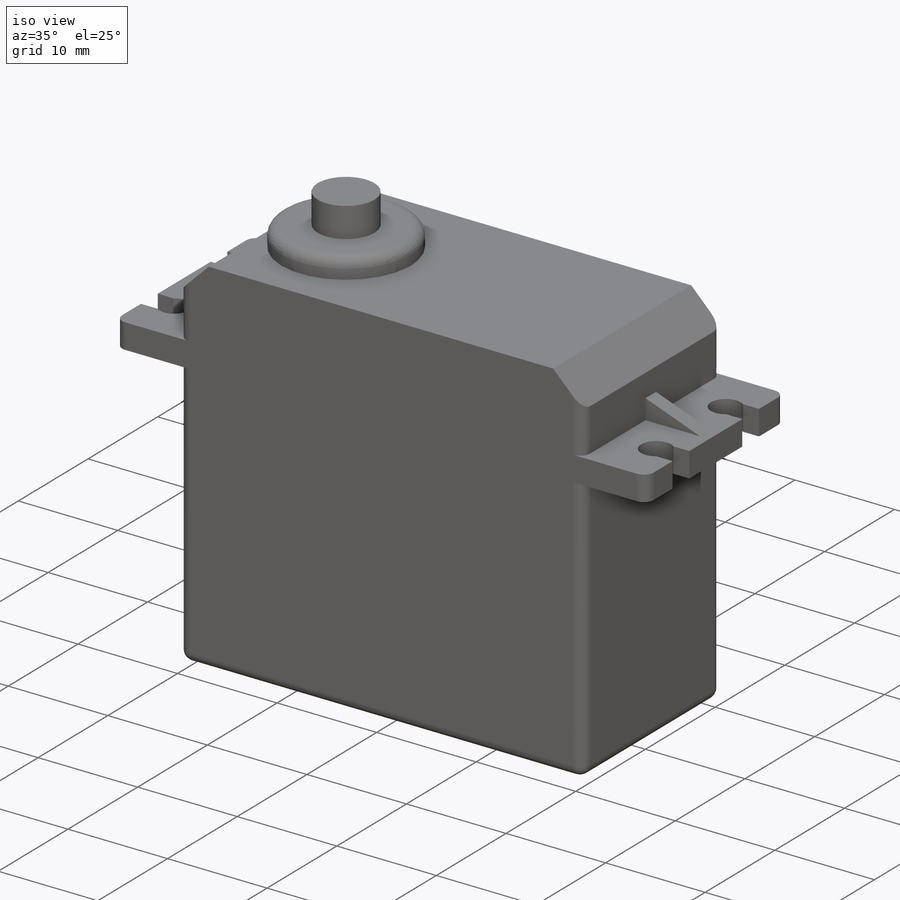
[diagram: iso view]
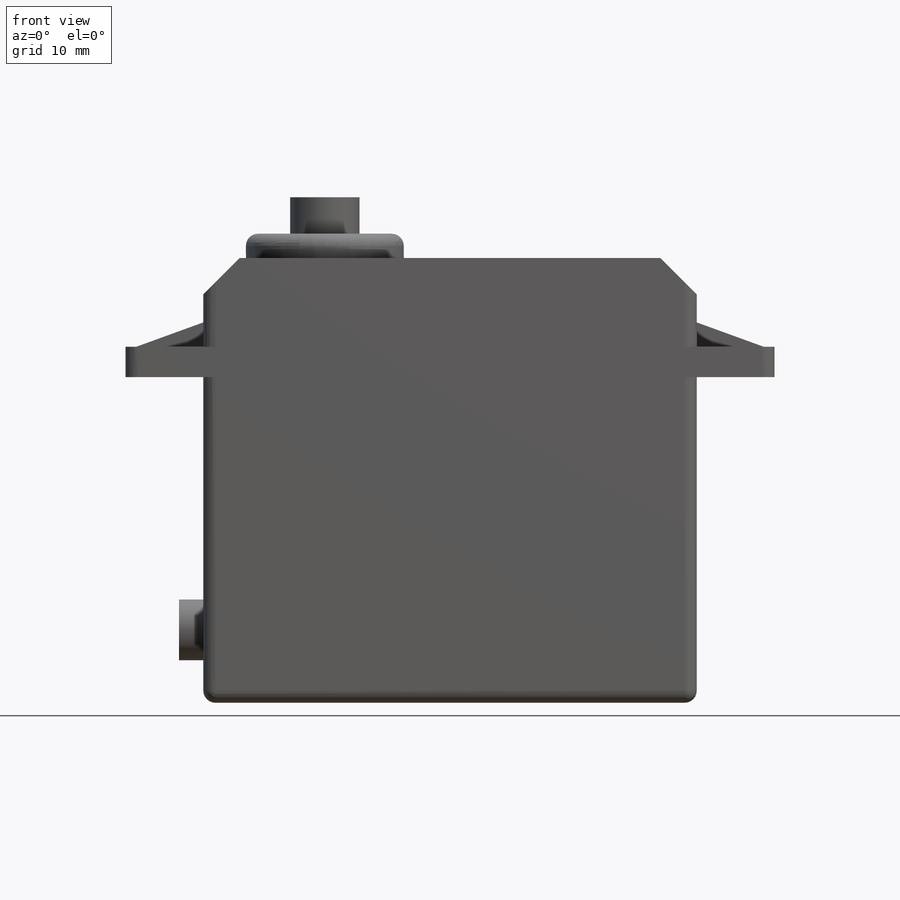
[diagram: front view]
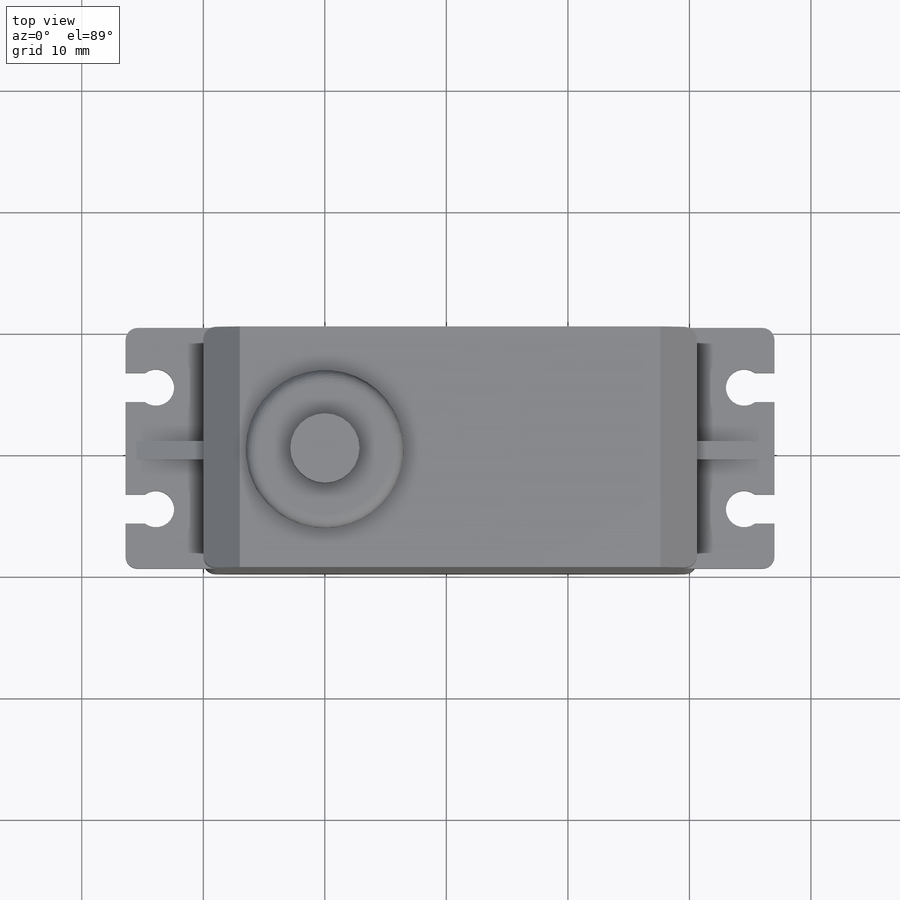
[diagram: top view]
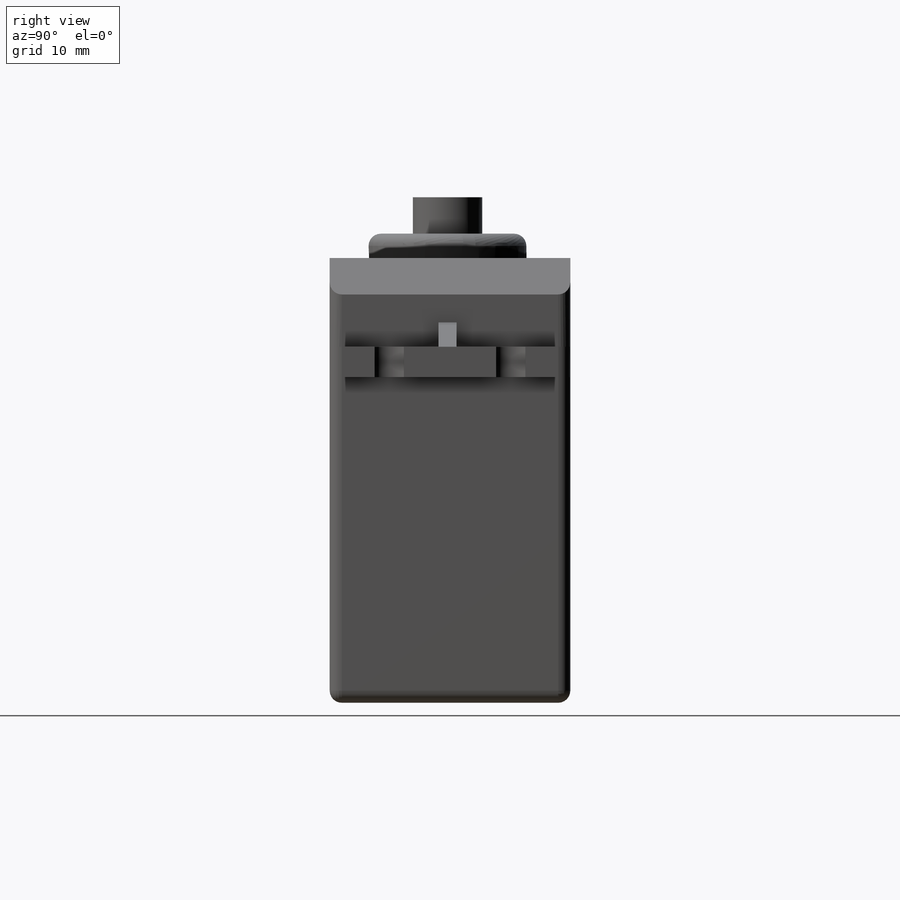
[diagram: right view]
SOLIDWORKS PART (.sldprt)
format: sldprt  version: not decoded by parser v0  size: 313,344 bytes
history: native  units: mm
features: sketch x6, extrude x5, material x1, cut_extrude x1, plane x1, fillet x1 (+12 scaffold rows collapsed)
feature tree (27):
  scaffold x12  (default folders/planes/origin — collapsed)
  material  "Material <not specified>"
  sketch  "Sketch1"  dims[c1.D1=40.6mm c1.D2=26.8mm c1.D3=2.5mm c1.D4=36.6mm c1.D5=7.4mm c2.D5=53.4mm]
  extrude  "Main Servo Body"  Depth=19.8mm
  sketch  "Sketch2"  dims[c1.D1=3.0mm c1.D2=9.8mm c1.D3=5.2mm c1.D4=2.5mm c1.D5=2.7mm c1.D6=1.2mm c1.D7=1.2mm c1.D8=1.2mm c1.D9=1.2mm c1.D10=1.2mm c1.D11=1.2mm c1.D12=1.2mm c1.D13=1.2mm c2.D6=2.4mm c2.D7=2.4mm c2.D2=5.0mm c2.D3=2.5mm c2.D5=2.4mm c3.D7=19.8mm]
  cut_extrude  "Servo Bracket"  [1 undecoded]
  sketch  "Sketch3"  dims[D1=13.0mm D2=10.0mm D3=10.1mm]
  extrude  "Servo Axis 1"  Depth=2mm
  plane  "Plane for Servo Brackets Support"  Offset=10.1mm
  sketch  "Sketch4"  dims[D1=5.5mm D2=2.0mm]
  extrude  "Servo Bracket Support"  Depth=1.5mm
  sketch  "Sketch5"  dims[D1=5.7mm]
  extrude  "Servo Axis 2"  Depth=3mm
  sketch  "Sketch6"  dims[D1=5.0mm D2=10.1mm D3=6.0mm]
  extrude  "Servo Wires"  Depth=2mm
  fillet  "Servo Contouring"  Radius=1mm
decode coverage: 12 of 13 modeling features carry decoded parameters
note: 1 parameter value undecoded
note: suppression state not decoded; provenance and decode notes live in map.json
